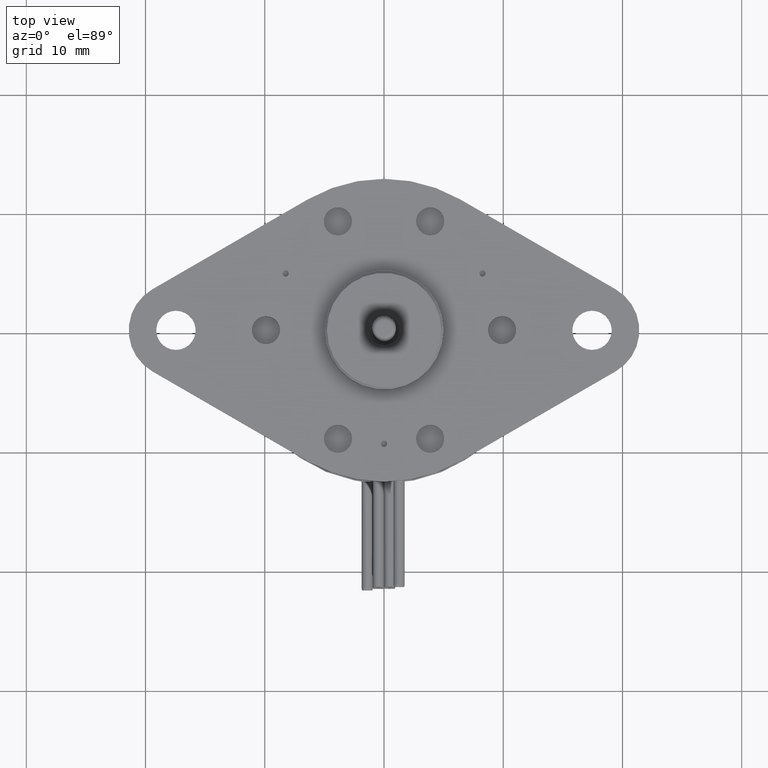
[diagram: clean part render]
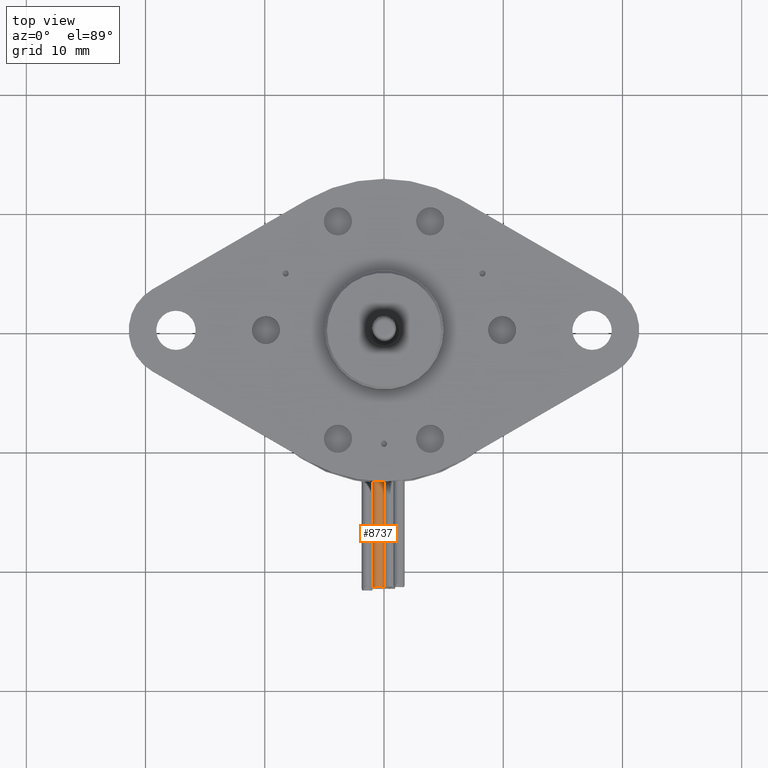
[diagram: same view with one face highlighted and labeled with its STEP entity id]
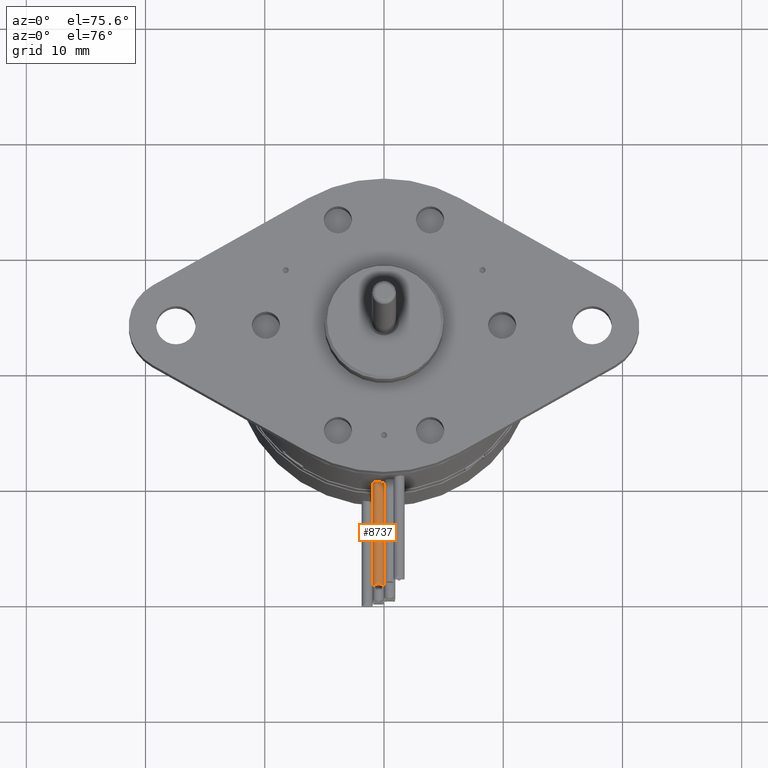
[diagram: same view with one face highlighted and labeled with its STEP entity id]
A machine part, top view. The second image highlights one B-rep face of the part: STEP entity #8737.
A second angle (auxiliary view) of the same face is appended — the face is thin or edge-on in the first view.
In plain terms, the highlighted cylindrical surface (edge-blend (fillet) strip) has radius 0.4699 mm, axis along (0, 1, 0).
Its self-contained STEP definition (entity closure, byte-faithful):
#3401=CARTESIAN_POINT('',(0.E0,-4.976E-1,9.81E-2));
#3412=CARTESIAN_POINT('',(-3.700000000001E-2,-4.962224904214E-1,
9.810000000345E-2));
#3414=DIRECTION('',(-6.509135967063E-12,-1.E0,9.921762329592E-12));
#3415=VECTOR('',#3414,3.472775095835E-1);
#3416=CARTESIAN_POINT('',(-3.700000000001E-2,-4.962224904214E-1,
9.810000000345E-2));
#3417=LINE('',#3416,#3415);
#3418=DIRECTION('',(-8.287773073544E-12,1.E0,-1.315172152830E-11));
#3419=VECTOR('',#3418,3.459000000095E-1);
#3420=CARTESIAN_POINT('',(2.861005414060E-12,-8.435000000095E-1,
9.810000000455E-2));
#3421=LINE('',#3420,#3419);
#3422=CARTESIAN_POINT('',(-3.700000000001E-2,-4.962224904214E-1,
9.810000000345E-2));
#3423=CARTESIAN_POINT('',(-3.699999999943E-2,-4.962224904214E-1,
1.001767546839E-1));
#3424=CARTESIAN_POINT('',(-3.630892806073E-2,-4.962742788364E-1,
1.043717107892E-1));
#3425=CARTESIAN_POINT('',(-3.303121215410E-2,-4.965089320885E-1,
1.101449720340E-1));
#3426=CARTESIAN_POINT('',(-2.817078969417E-2,-4.968119774031E-1,
1.143085611112E-1));
#3427=CARTESIAN_POINT('',(-2.193739187034E-2,-4.971305622913E-1,
1.166753683848E-1));
#3428=CARTESIAN_POINT('',(-1.535910030336E-2,-4.973768981510E-1,
1.167217370951E-1));
#3429=CARTESIAN_POINT('',(-9.124587728547E-3,-4.975273639789E-1,
1.144848855170E-1));
#3430=CARTESIAN_POINT('',(-4.095828428410E-3,-4.975889648534E-1,
1.103278207303E-1));
#3431=CARTESIAN_POINT('',(-6.983491306714E-4,-4.976011549108E-1,
1.044349704476E-1));
#3432=CARTESIAN_POINT('',(0.E0,-4.976E-1,1.001920103785E-1));
#3433=CARTESIAN_POINT('',(0.E0,-4.976E-1,9.81E-2));
#3435=CARTESIAN_POINT('',(2.861005414060E-12,-8.435000000095E-1,
9.810000000455E-2));
#3465=CARTESIAN_POINT('',(-3.700000000227E-2,-8.435000000049E-1,
9.810000000689E-2));
#3466=CARTESIAN_POINT('',(-3.700000000203E-2,-8.441144078248E-1,
9.898487436901E-2));
#3467=CARTESIAN_POINT('',(-3.687495385724E-2,-8.452415938733E-1,
1.006723601871E-1));
#3468=CARTESIAN_POINT('',(-3.638691325112E-2,-8.465230719788E-1,
1.030062922534E-1));
#3469=CARTESIAN_POINT('',(-3.566863311302E-2,-8.473391900747E-1,
1.050994966869E-1));
#3470=CARTESIAN_POINT('',(-3.477437448082E-2,-8.477465846035E-1,
1.069784218104E-1));
#3471=CARTESIAN_POINT('',(-3.366021197308E-2,-8.478078501634E-1,
1.087761729750E-1));
#3472=CARTESIAN_POINT('',(-3.224788492815E-2,-8.475179084413E-1,
1.105575060122E-1));
#3473=CARTESIAN_POINT('',(-3.038985674269E-2,-8.468312957105E-1,
1.123612724165E-1));
#3474=CARTESIAN_POINT('',(-2.811216091397E-2,-8.458387914995E-1,
1.139872654060E-1));
#3475=CARTESIAN_POINT('',(-2.573378069369E-2,-8.448722228951E-1,
1.151918916967E-1));
#3476=CARTESIAN_POINT('',(-2.334711437509E-2,-8.441065558117E-1,
1.160113374365E-1));
#3477=CARTESIAN_POINT('',(-2.092558700585E-2,-8.436124202907E-1,
1.164945645310E-1));
#3478=CARTESIAN_POINT('',(-1.850009813530E-2,-8.434437925031E-1,
1.166527157944E-1));
#3479=CARTESIAN_POINT('',(-1.607448784379E-2,-8.436124096981E-1,
1.164945722907E-1));
#3480=CARTESIAN_POINT('',(-1.365302450743E-2,-8.441065114935E-1,
1.160113902949E-1));
#3481=CARTESIAN_POINT('',(-1.126603790144E-2,-8.448722930396E-1,
1.151917942378E-1));
#3482=CARTESIAN_POINT('',(-8.888278662613E-3,-8.458386086869E-1,
1.139875398774E-1));
#3483=CARTESIAN_POINT('',(-6.609844012807E-3,-8.468314188166E-1,
1.123610470661E-1));
#3484=CARTESIAN_POINT('',(-4.752242433873E-3,-8.475178549444E-1,
1.105576096668E-1));
#3485=CARTESIAN_POINT('',(-3.339757274650E-3,-8.478078876597E-1,
1.087761806166E-1));
#3486=CARTESIAN_POINT('',(-2.225270621903E-3,-8.477465199974E-1,
1.069777913168E-1));
#3487=CARTESIAN_POINT('',(-1.331179616345E-3,-8.473390272333E-1,
1.050990113145E-1));
#3488=CARTESIAN_POINT('',(-6.129771643946E-4,-8.465228694978E-1,
1.030058772807E-1));
#3489=CARTESIAN_POINT('',(-1.250241277417E-4,-8.452414415940E-1,
1.006721299395E-1));
#3490=CARTESIAN_POINT('',(2.861005197349E-12,-8.441143495042E-1,
9.898479036639E-2));
#3491=CARTESIAN_POINT('',(2.861005414060E-12,-8.435000000095E-1,
9.810000000455E-2));
#4165=VERTEX_POINT('',#3401);
#4166=VERTEX_POINT('',#3412);
#4339=CARTESIAN_POINT('',(-3.700000000227E-2,-8.435000000049E-1,
9.810000000689E-2));
#4340=VERTEX_POINT('',#4339);
#4341=VERTEX_POINT('',#3435);
#8725=CARTESIAN_POINT('',(-1.85E-2,-8.547989304650E-1,9.81E-2));
#8726=DIRECTION('',(0.E0,1.E0,0.E0));
#8727=DIRECTION('',(1.E0,0.E0,0.E0));
#8728=AXIS2_PLACEMENT_3D('',#8725,#8726,#8727);
#8729=CYLINDRICAL_SURFACE('',#8728,1.85E-2);
#8730=ORIENTED_EDGE('',*,*,#4571,.T.);
#8731=ORIENTED_EDGE('',*,*,#8720,.F.);
#8733=ORIENTED_EDGE('',*,*,#8732,.F.);
#8734=ORIENTED_EDGE('',*,*,#8716,.F.);
#8735=EDGE_LOOP('',(#8730,#8731,#8733,#8734));
#8736=FACE_OUTER_BOUND('',#8735,.F.);
#8737=ADVANCED_FACE('',(#8736),#8729,.T.);
#3434=B_SPLINE_CURVE_WITH_KNOTS('',3,(#3422,#3423,#3424,#3425,#3426,#3427,#3428,
#3429,#3430,#3431,#3432,#3433),.UNSPECIFIED.,.F.,.F.,(4,1,1,1,1,1,1,1,1,4),
(0.E0,1.111111111111E-1,2.222222222222E-1,3.333333333333E-1,4.444444444444E-1,
5.555555555556E-1,6.666666666667E-1,7.777777777778E-1,8.888888888889E-1,1.E0),
.UNSPECIFIED.);
#3492=B_SPLINE_CURVE_WITH_KNOTS('',3,(#3465,#3466,#3467,#3468,#3469,#3470,#3471,
#3472,#3473,#3474,#3475,#3476,#3477,#3478,#3479,#3480,#3481,#3482,#3483,#3484,
#3485,#3486,#3487,#3488,#3489,#3490,#3491),.UNSPECIFIED.,.F.,.F.,(4,1,1,1,1,1,1,
1,1,1,1,1,1,1,1,1,1,1,1,1,1,1,1,1,4),(0.E0,4.166666666667E-2,8.333333333333E-2,
1.25E-1,1.666666666667E-1,2.083333333333E-1,2.5E-1,2.916666666667E-1,
3.333333333333E-1,3.75E-1,4.166666666667E-1,4.583333333333E-1,5.E-1,
5.416666666667E-1,5.833333333333E-1,6.25E-1,6.666666666667E-1,7.083333333333E-1,
7.5E-1,7.916666666667E-1,8.333333333333E-1,8.75E-1,9.166666666667E-1,
9.583333333333E-1,1.E0),.UNSPECIFIED.);
#4571=EDGE_CURVE('',#4166,#4165,#3434,.T.);
#8716=EDGE_CURVE('',#4166,#4340,#3417,.T.);
#8720=EDGE_CURVE('',#4341,#4165,#3421,.T.);
#8732=EDGE_CURVE('',#4340,#4341,#3492,.T.);